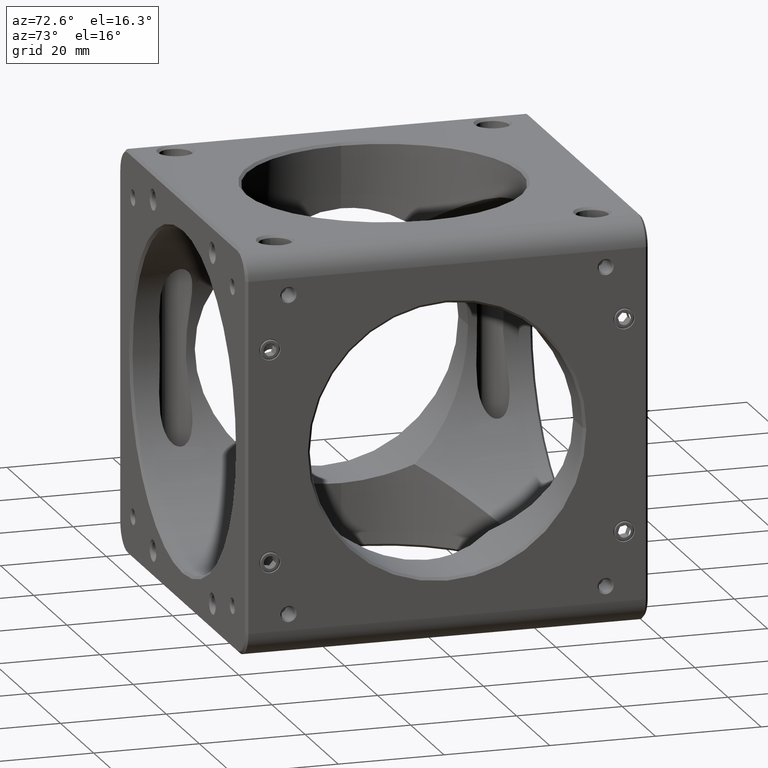
[diagram: clean part render]
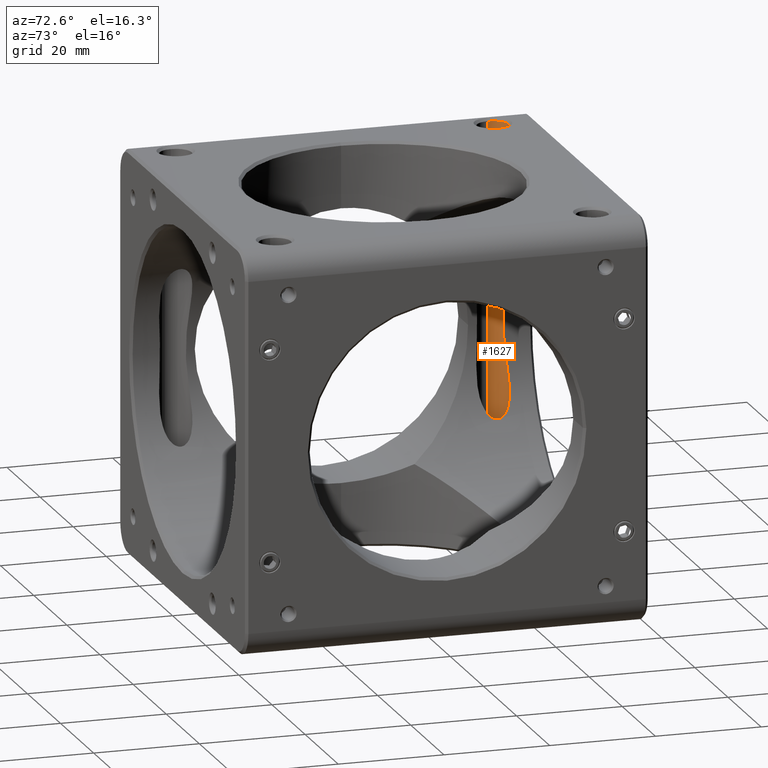
[diagram: same view with one face highlighted and labeled with its STEP entity id]
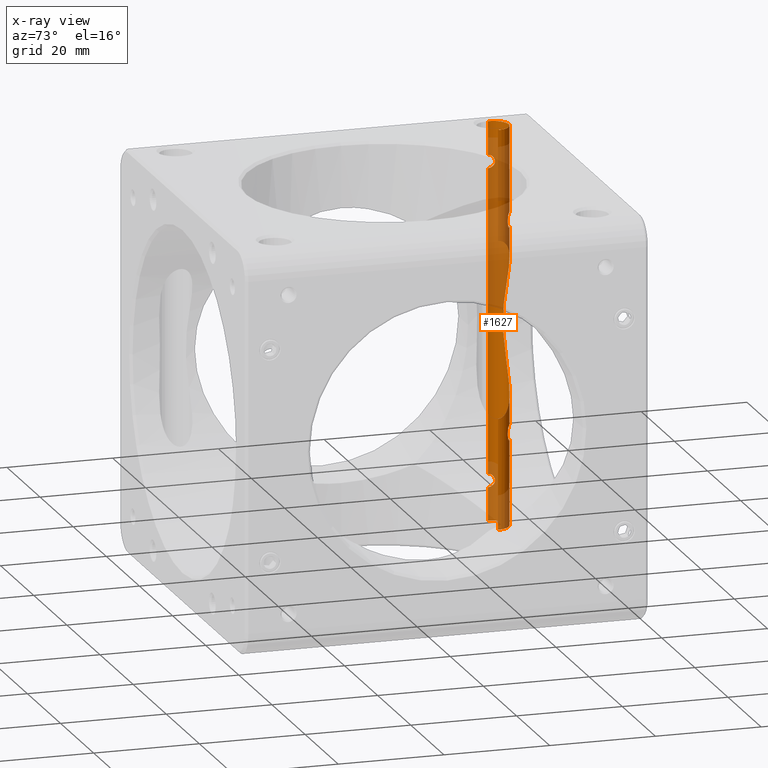
[diagram: x-ray of the same camera — body ghosted, the highlighted face saturated]
A machine part, auxiliary view. The second image highlights one B-rep face of the part: STEP entity #1627.
The next image is the same camera in x-ray: the body ghosted, the highlighted face saturated — about 53% of this face is hidden behind the body in this view.
In plain terms, the highlighted cylindrical surface (edge-blend (fillet) strip) has radius 3 mm, axis along (-0, -0, 1).
Its self-contained STEP definition (entity closure, byte-faithful):
#55 = CARTESIAN_POINT ( 'NONE',  ( -30.08362005272863016, 33.00000000000001421, -28.75000000000000711 ) ) ;
#65 = CARTESIAN_POINT ( 'NONE',  ( -32.83123646504601112, 30.99317586861023699, -30.76329723267446781 ) ) ;
#68 = CARTESIAN_POINT ( 'NONE',  ( -32.93645028066520553, 30.63306343170202339, 28.90975739561481461 ) ) ;
#111 = CARTESIAN_POINT ( 'NONE',  ( -32.73107818922035506, 31.24158351899744801, 29.83344967157232119 ) ) ;
#130 = CARTESIAN_POINT ( 'NONE',  ( -32.93850792701901753, 30.60576740804622631, 37.58800093065710968 ) ) ;
#131 = CARTESIAN_POINT ( 'NONE',  ( -32.74312263298582337, 31.21651225835274346, -29.66953856047498661 ) ) ;
#142 = CARTESIAN_POINT ( 'NONE',  ( -31.24169780690524689, 32.73102573822457373, -30.16567262568044683 ) ) ;
#152 = CARTESIAN_POINT ( 'NONE',  ( -32.84887332932260762, 30.94209105459838582, 29.17442338651204636 ) ) ;
#157 = CARTESIAN_POINT ( 'NONE',  ( -32.88244724530535024, 30.83373984266796342, -37.59234066307465127 ) ) ;
#166 = CARTESIAN_POINT ( 'NONE',  ( -32.98964749367128491, 30.25228143534046765, 37.58325440582734700 ) ) ;
#184 = CARTESIAN_POINT ( 'NONE',  ( -27.93182329876071890, 32.17359429668785964, 19.60841420194881124 ) ) ;
#201 = CARTESIAN_POINT ( 'NONE',  ( -32.74219897542064217, 31.21671407432281953, -37.59890925023186981 ) ) ;
#209 = VECTOR ( 'NONE', #9799, 1000.000000000000000 ) ;
#212 = CARTESIAN_POINT ( 'NONE',  ( -32.87338900802044606, 30.86237607295054275, 37.59292877343733608 ) ) ;
#235 = CARTESIAN_POINT ( 'NONE',  ( -29.66961383292283472, 32.98569163511257329, -31.21665246705001806 ) ) ;
#265 = CARTESIAN_POINT ( 'NONE',  ( -30.63327018553734149, 32.93639037467794140, -28.90992092169683403 ) ) ;
#272 = ORIENTED_EDGE ( 'NONE', *, *, #6432, .F. ) ;
#278 = CARTESIAN_POINT ( 'NONE',  ( -28.75002085670600849, 32.72718758831408081, -30.08271349988444854 ) ) ;
#285 = CARTESIAN_POINT ( 'NONE',  ( -32.99300695093436531, 30.20690935899110130, -37.58291353323392769 ) ) ;
#305 = CARTESIAN_POINT ( 'NONE',  ( -31.20929672240722041, 32.74552662775170120, -30.32689799593806157 ) ) ;
#315 = EDGE_CURVE ( 'NONE', #10967, #3483, #9356, .T. ) ;
#331 = EDGE_CURVE ( 'NONE', #7462, #3823, #2019, .T. ) ;
#419 = CARTESIAN_POINT ( 'NONE',  ( -32.65714285714285836, 31.39269229793758953, -37.60000000000000853 ) ) ;
#431 = CARTESIAN_POINT ( 'NONE',  ( -32.78236584803950393, 31.12231799325444470, -30.55638196424555986 ) ) ;
#434 = CARTESIAN_POINT ( 'NONE',  ( -27.09473745348472562, 30.77176321514282975, 16.55121538067704634 ) ) ;
#449 = CARTESIAN_POINT ( 'NONE',  ( -31.23566109643702404, 32.73606959937883687, -18.53633678742385982 ) ) ;
#479 = CARTESIAN_POINT ( 'NONE',  ( -30.14630420299948099, 33.00531405188772993, 9.994116460379276035 ) ) ;
#488 = VERTEX_POINT ( 'NONE', #6562 ) ;
#495 = CARTESIAN_POINT ( 'NONE',  ( -32.16213420879838480, 32.08324436572599581, -19.12529022669961876 ) ) ;
#499 = CARTESIAN_POINT ( 'NONE',  ( -30.22071571275164104, 33.00105859930138763, 18.42724484125022855 ) ) ;
#520 = CARTESIAN_POINT ( 'NONE',  ( -31.51848055242552249, 32.59055743343103728, -3.905403226412029749 ) ) ;
#536 = CARTESIAN_POINT ( 'NONE',  ( -32.02988055043085325, 32.21057030310407754, -21.03447388123634809 ) ) ;
#578 = CARTESIAN_POINT ( 'NONE',  ( -32.28074659371760902, 31.94984134034056922, -20.57595825909654508 ) ) ;
#581 = CARTESIAN_POINT ( 'NONE',  ( -32.02988055043085325, 32.21057030310407754, 18.96552611876364480 ) ) ;
#600 = CARTESIAN_POINT ( 'NONE',  ( -31.75011836851781410, 32.43661357575290793, -0.7849969435746634305 ) ) ;
#646 = CARTESIAN_POINT ( 'NONE',  ( -28.84592955738684239, 32.77842109690031691, -18.51142539430053091 ) ) ;
#661 = CARTESIAN_POINT ( 'NONE',  ( -31.25005339231949009, 32.72715355633566503, 29.91818594005190235 ) ) ;
#691 = CARTESIAN_POINT ( 'NONE',  ( -28.17740677736049193, 32.38498612594970893, 21.21960419126994069 ) ) ;
#699 = LINE ( 'NONE', #8243, #7611 ) ;
#801 = CIRCLE ( 'NONE', #2521, 3.000000000000002665 ) ;
#847 = CARTESIAN_POINT ( 'NONE',  ( -28.84592955738684239, 32.77842109690031691, 21.48857460569946554 ) ) ;
#856 = CARTESIAN_POINT ( 'NONE',  ( -29.83289457765727448, 33.00000000000000711, 31.24999999999998579 ) ) ;
#863 = VERTEX_POINT ( 'NONE', #5904 ) ;
#867 = VERTEX_POINT ( 'NONE', #5942 ) ;
#884 = CARTESIAN_POINT ( 'NONE',  ( -28.09999999999999432, 32.32163735324877507, -21.15497249869485685 ) ) ;
#887 = CARTESIAN_POINT ( 'NONE',  ( -32.93621366939020589, 30.63442566885938234, -28.91037036598827470 ) ) ;
#898 = CARTESIAN_POINT ( 'NONE',  ( -30.33106559696168958, 32.98555816791957085, 28.78369863548799046 ) ) ;
#935 = CARTESIAN_POINT ( 'NONE',  ( -29.36693656829810095, 32.93645028066524105, 28.90975739561481817 ) ) ;
#936 = B_SPLINE_CURVE_WITH_KNOTS ( 'NONE', 3,
 ( #9029, #10812, #5201, #4412, #6122, #11904, #3437, #499, #7075, #8953, #7192, #9945, #8123, #1606, #10897, #7228, #581, #8162, #4295, #10858, #11787, #10089, #9220, #11015, #5393, #3660, #2666, #11946, #9264, #10210, #8315, #1762, #11127, #12102, #6481, #1681, #2631, #8361, #3624, #2708, #11164, #9185, #847, #1807, #6320, #4608, #691, #7422 ),
 .UNSPECIFIED., .F., .F.,
 ( 4, 2, 2, 2, 2, 2, 2, 2, 2, 2, 2, 2, 2, 2, 2, 2, 2, 2, 2, 2, 2, 2, 2, 4 ),
 ( 0.0000000000000000000, 0.0007014002630802233232, 0.001402800526160446646, 0.002104200789240669861, 0.002805601052320893293, 0.003507001315401116724, 0.003857701446941236897, 0.004208401578481357069, 0.004559101710021477676, 0.004909801841561598282, 0.005260501973101718888, 0.005611202104641838627, 0.005961902236181959233, 0.006312602367722079839, 0.007014002630802314113, 0.007364702762342428648, 0.007715402893882542315, 0.008066103025422665523, 0.008416803156962788732, 0.009118203420043045557, 0.009819603683123302382, 0.01052100394620355921, 0.01087170407774368588, 0.01122240420928381256 ),
 .UNSPECIFIED. ) ;
#941 = CARTESIAN_POINT ( 'NONE',  ( -33.00000000000000000, 29.99999999999998224, -31.25000000000000711 ) ) ;
#1027 = CARTESIAN_POINT ( 'NONE',  ( -32.90206081131795912, 30.76974168013205002, 29.00177810811563361 ) ) ;
#1042 = ORIENTED_EDGE ( 'NONE', *, *, #6178, .F. ) ;
#1043 = CARTESIAN_POINT ( 'NONE',  ( -32.73992846718971350, 31.22182512571995971, 37.59896751386658309 ) ) ;
#1087 = CARTESIAN_POINT ( 'NONE',  ( -32.98001765694118603, 30.34594874664316322, 37.58420675739098016 ) ) ;
#1110 = CARTESIAN_POINT ( 'NONE',  ( -32.74312263298580916, 31.21651225835274346, 30.33046143952500984 ) ) ;
#1121 = CARTESIAN_POINT ( 'NONE',  ( -32.91727739844363754, 30.69969216133492296, -37.58975519196502546 ) ) ;
#1128 = CARTESIAN_POINT ( 'NONE',  ( -32.98197301723426023, 30.32874664588209512, 37.58401496172903933 ) ) ;
#1161 = CARTESIAN_POINT ( 'NONE',  ( -32.79396076728903608, 31.09310981791269413, -37.59718901309840078 ) ) ;
#1179 = CARTESIAN_POINT ( 'NONE',  ( -30.99786008342292831, 32.83170854787983473, -30.76998269508255746 ) ) ;
#1184 = B_SPLINE_CURVE_WITH_KNOTS ( 'NONE', 3,
 ( #8860, #8907, #10893, #3278, #1526, #3322, #11784, #4257, #6159, #11823, #10808, #4212, #5275, #5198, #2392, #11748, #536, #7105, #9899, #578, #6119, #2430, #10765, #2474, #11705, #3232, #9775, #495, #1445, #4170, #4327, #5154, #6075, #449, #8001, #8949, #7032, #1404, #1484, #8040, #8986, #4494, #646, #4453, #5391, #11865, #9148, #8235 ),
 .UNSPECIFIED., .F., .F.,
 ( 4, 2, 2, 2, 2, 2, 2, 2, 2, 2, 2, 2, 2, 2, 2, 2, 2, 2, 2, 2, 2, 2, 2, 4 ),
 ( 0.0000000000000000000, 0.0007014002630802233232, 0.001402800526160446646, 0.002104200789240669861, 0.002805601052320893293, 0.003507001315401116724, 0.003857701446941236897, 0.004208401578481357069, 0.004559101710021477676, 0.004909801841561598282, 0.005260501973101718888, 0.005611202104641838627, 0.005961902236181959233, 0.006312602367722079839, 0.007014002630802314113, 0.007364702762342428648, 0.007715402893882542315, 0.008066103025422665523, 0.008416803156962788732, 0.009118203420043045557, 0.009819603683123302382, 0.01052100394620355921, 0.01087170407774368588, 0.01122240420928381256 ),
 .UNSPECIFIED. ) ;
#1223 = CARTESIAN_POINT ( 'NONE',  ( -31.08999223777437138, 32.79582725171314905, -30.63371032263465565 ) ) ;
#1236 = CARTESIAN_POINT ( 'NONE',  ( -32.90207184137031504, 30.76966679535856386, 30.99822521142986176 ) ) ;
#1244 = CARTESIAN_POINT ( 'NONE',  ( -32.94871256351088107, 30.55318396858663377, -37.58714554497171179 ) ) ;
#1256 = CARTESIAN_POINT ( 'NONE',  ( -26.99999999999999645, 30.00000000000000000, -38.10000000000011511 ) ) ;
#1270 = CARTESIAN_POINT ( 'NONE',  ( -30.16566433255839286, 32.99651283919369149, -28.75830472417160166 ) ) ;
#1283 = CARTESIAN_POINT ( 'NONE',  ( -32.83130304355378115, 30.99906507491512997, 30.76857629725132881 ) ) ;
#1310 = EDGE_LOOP ( 'NONE', ( #8715, #8341, #3061, #5869, #8519, #6655, #8625, #9488, #6203, #7458, #6318, #272 ) ) ;
#1327 = CARTESIAN_POINT ( 'NONE',  ( -33.00000000000001421, 30.16710542234285342, 31.25000000000000000 ) ) ;
#1362 = B_SPLINE_CURVE_WITH_KNOTS ( 'NONE', 3,
 ( #941, #2929, #9485, #7519, #3838, #12162, #65, #6653, #431, #1425, #1468, #6424, #9130, #9245, #131, #4024, #3661, #6443, #887, #8317, #4609, #5630 ),
 .UNSPECIFIED., .F., .F.,
 ( 4, 2, 2, 2, 2, 2, 2, 2, 2, 2, 4 ),
 ( 0.003953707732116446341, 0.004447523194763855318, 0.004941338657411264296, 0.005188246388734970953, 0.005435154120058677610, 0.005682061851382383399, 0.005928969582706090924, 0.006422785045353514646, 0.006916600508000938369, 0.007410415970648362091, 0.007904231433295785814 ),
 .UNSPECIFIED. ) ;
#1365 = EDGE_CURVE ( 'NONE', #8425, #3481, #936, .T. ) ;
#1374 = CARTESIAN_POINT ( 'NONE',  ( -27.99528104713443000, 32.23225647141286032, -20.77850469158084223 ) ) ;
#1388 = CARTESIAN_POINT ( 'NONE',  ( -28.51409838404950037, 32.61274049394101837, 13.96993580573408700 ) ) ;
#1404 = CARTESIAN_POINT ( 'NONE',  ( -30.45785583717324485, 32.97398429294119637, -18.43506327150658208 ) ) ;
#1419 = CARTESIAN_POINT ( 'NONE',  ( -32.65714285714286547, 31.39269229793757887, 37.59999999999998721 ) ) ;
#1425 = CARTESIAN_POINT ( 'NONE',  ( -32.75619909344844416, 31.18512613151228763, -30.40575191993032789 ) ) ;
#1445 = CARTESIAN_POINT ( 'NONE',  ( -32.03945184040475169, 32.20916905892325133, -18.95712608689216339 ) ) ;
#1459 = CARTESIAN_POINT ( 'NONE',  ( -30.00000000000000000, 30.00000000000000000, 37.59999999999998721 ) ) ;
#1468 = CARTESIAN_POINT ( 'NONE',  ( -32.74563853333128094, 31.20904373558929024, -30.32784431057705987 ) ) ;
#1470 = CARTESIAN_POINT ( 'NONE',  ( -27.02479687719874235, 30.39728243043001399, -16.66502933350027860 ) ) ;
#1484 = CARTESIAN_POINT ( 'NONE',  ( -30.22061312267533140, 33.00102944447738906, -18.42725411385820777 ) ) ;
#1509 = VERTEX_POINT ( 'NONE', #7909 ) ;
#1526 = CARTESIAN_POINT ( 'NONE',  ( -29.06127678432481076, 32.85900602462763942, -21.52156653364253103 ) ) ;
#1590 = CARTESIAN_POINT ( 'NONE',  ( -27.58062691127887334, 31.77885085933608522, -15.72896746267886314 ) ) ;
#1603 = EDGE_LOOP ( 'NONE', ( #1042, #6131 ) ) ;
#1606 = CARTESIAN_POINT ( 'NONE',  ( -31.71828173462080969, 32.46160728318564992, 18.71559988468435876 ) ) ;
#1627 = ADVANCED_FACE ( 'NONE', ( #1779, #2661, #7510, #10378, #3222 ), #9862, .F. ) ;
#1656 = CARTESIAN_POINT ( 'NONE',  ( -31.09085417098760828, 32.79546765441260447, 30.63162656169443920 ) ) ;
#1681 = CARTESIAN_POINT ( 'NONE',  ( -30.90935860686807146, 32.86122381596551634, 21.52195377465505999 ) ) ;
#1689 = DIRECTION ( 'NONE',  ( 0.0000000000000000000, 0.0000000000000000000, 1.000000000000000000 ) ) ;
#1712 = VERTEX_POINT ( 'NONE', #11201 ) ;
#1762 = CARTESIAN_POINT ( 'NONE',  ( -31.53629894335297479, 32.57910003437333302, 21.37109196772228614 ) ) ;
#1774 = CARTESIAN_POINT ( 'NONE',  ( -28.90902617315876455, 32.79542482701091899, 30.63157180659253598 ) ) ;
#1779 = FACE_OUTER_BOUND ( 'NONE', #1310, .T. ) ;
#1785 = EDGE_CURVE ( 'NONE', #9328, #488, #4816, .T. ) ;
#1807 = CARTESIAN_POINT ( 'NONE',  ( -28.54230395648025009, 32.62449954072399549, 21.39982376152873655 ) ) ;
#1856 = CARTESIAN_POINT ( 'NONE',  ( -29.66961383292283472, 32.98569163511257329, 28.78334753294998194 ) ) ;
#1887 = VERTEX_POINT ( 'NONE', #6932 ) ;
#1973 = CARTESIAN_POINT ( 'NONE',  ( -27.91512890359862453, 32.15715381679603269, 19.80444692142366492 ) ) ;
#1981 = CARTESIAN_POINT ( 'NONE',  ( -32.83123646504599691, 30.99317586861023699, 29.23670276732553219 ) ) ;
#2000 = CARTESIAN_POINT ( 'NONE',  ( -32.89440565871893796, 30.78994224547194491, 37.59151247675945484 ) ) ;
#2013 = CARTESIAN_POINT ( 'NONE',  ( -31.25005339231949009, 32.72715355633566503, -30.08181405994808699 ) ) ;
#2019 = LINE ( 'NONE', #7966, #12006 ) ;
#2066 = CARTESIAN_POINT ( 'NONE',  ( -32.96457161592295648, 30.46366828152925166, -37.58571615677059441 ) ) ;
#2075 = CARTESIAN_POINT ( 'NONE',  ( -33.00000000000000711, 30.05798177455074338, 37.58218712381317061 ) ) ;
#2125 = CARTESIAN_POINT ( 'NONE',  ( -31.18525530011068980, 32.75614824501823108, -30.40554017854621804 ) ) ;
#2157 = CARTESIAN_POINT ( 'NONE',  ( -32.82167700771039875, 31.01905048746588278, 37.59590905536880712 ) ) ;
#2185 = CARTESIAN_POINT ( 'NONE',  ( -28.74995840626231924, 32.72715896420125858, -29.83552039378937337 ) ) ;
#2191 = CARTESIAN_POINT ( 'NONE',  ( -32.93975519786597772, 30.59980275855088294, -37.58792964002005021 ) ) ;
#2247 = CARTESIAN_POINT ( 'NONE',  ( -27.02467636232404047, 30.39643130820840966, 16.66522473469296273 ) ) ;
#2392 = CARTESIAN_POINT ( 'NONE',  ( -31.80457354537115222, 32.39862692565476010, -21.23175825153139584 ) ) ;
#2425 = EDGE_CURVE ( 'NONE', #10400, #5778, #8246, .T. ) ;
#2430 = CARTESIAN_POINT ( 'NONE',  ( -32.35126649050457104, 31.86347999868782566, -20.24011021924610887 ) ) ;
#2454 = ORIENTED_EDGE ( 'NONE', *, *, #1365, .T. ) ;
#2460 = CARTESIAN_POINT ( 'NONE',  ( -27.83089444402629908, 32.08942268959607702, -15.28461342298682979 ) ) ;
#2474 = CARTESIAN_POINT ( 'NONE',  ( -32.36184961097497848, 31.84977471582561037, -19.88549706287863472 ) ) ;
#2478 = CARTESIAN_POINT ( 'NONE',  ( -29.36557433114073490, 32.93621366939024142, -28.91037036598826404 ) ) ;
#2515 = CARTESIAN_POINT ( 'NONE',  ( -29.05790894540172076, 32.84887332932265025, 29.17442338651206057 ) ) ;
#2519 = ORIENTED_EDGE ( 'NONE', *, *, #10631, .T. ) ;
#2521 = AXIS2_PLACEMENT_3D ( 'NONE', #1459, #1689, #10217 ) ;
#2554 = B_SPLINE_CURVE_WITH_KNOTS ( 'NONE', 3,
 ( #6372, #8247, #3486, #10945, #5325, #3594, #10138, #9122, #1656, #8096, #11877, #661, #7275, #10026, #11838, #4427, #6290, #7237, #12200, #898, #8331, #11093 ),
 .UNSPECIFIED., .F., .F.,
 ( 4, 2, 2, 2, 2, 2, 2, 2, 2, 2, 4 ),
 ( 0.0000000000000000000, 0.0002471067332572709574, 0.0004942134665145419149, 0.0009884269330290964065, 0.001482640399543650898, 0.001976853866058205390, 0.002223960599315482744, 0.002471067332572759664, 0.002965280799087327383, 0.003459494265601895102, 0.003953707732116463688 ),
 .UNSPECIFIED. ) ;
#2631 = CARTESIAN_POINT ( 'NONE',  ( -30.79790187707931537, 32.89428855336279156, 21.53506303306338054 ) ) ;
#2637 = EDGE_CURVE ( 'NONE', #3427, #4377, #699, .T. ) ;
#2661 = FACE_BOUND ( 'NONE', #2741, .T. ) ;
#2666 = CARTESIAN_POINT ( 'NONE',  ( -32.28305262479808846, 31.94713984306439514, 20.56883983834688578 ) ) ;
#2708 = CARTESIAN_POINT ( 'NONE',  ( -29.75222545192861645, 32.99890907662184958, 21.57207160274667856 ) ) ;
#2741 = EDGE_LOOP ( 'NONE', ( #2454, #2519 ) ) ;
#2801 = CARTESIAN_POINT ( 'NONE',  ( -28.91686834372630699, 32.79805719065456060, 29.37083643893202378 ) ) ;
#2929 = CARTESIAN_POINT ( 'NONE',  ( -32.99999999999999289, 30.16460412200393648, -31.24999999999999645 ) ) ;
#2931 = ORIENTED_EDGE ( 'NONE', *, *, #8770, .F. ) ;
#2954 = CARTESIAN_POINT ( 'NONE',  ( -32.91669521231492723, 30.70222259213202065, 37.58979507251953578 ) ) ;
#3024 = CARTESIAN_POINT ( 'NONE',  ( -32.81629340555601004, 31.03378823091382444, -37.59617388995566500 ) ) ;
#3046 = CARTESIAN_POINT ( 'NONE',  ( -30.16473678912786127, 32.99999999999999289, -31.25000000000000000 ) ) ;
#3050 = EDGE_CURVE ( 'NONE', #6127, #1712, #8488, .T. ) ;
#3061 = ORIENTED_EDGE ( 'NONE', *, *, #8844, .T. ) ;
#3064 = CARTESIAN_POINT ( 'NONE',  ( -26.99999999999999645, 30.00000000000000355, -16.70516387228811794 ) ) ;
#3067 = CARTESIAN_POINT ( 'NONE',  ( -32.71029248694841840, 31.28780748666427058, -37.59967967100279651 ) ) ;
#3078 = CARTESIAN_POINT ( 'NONE',  ( -32.80867867200043975, 31.05422642967841540, 37.59652720620905342 ) ) ;
#3101 = CARTESIAN_POINT ( 'NONE',  ( -29.00682413138988736, 32.83123646504604665, -30.76329723267445715 ) ) ;
#3148 = CARTESIAN_POINT ( 'NONE',  ( -28.78348774164738089, 32.74312263298586601, -29.66953856047498661 ) ) ;
#3155 = CARTESIAN_POINT ( 'NONE',  ( -27.93316006028209841, 32.17486941780287424, 20.40257839629355630 ) ) ;
#3156 = CARTESIAN_POINT ( 'NONE',  ( -32.91489293928751891, 30.70954635864744020, -37.58994193524870298 ) ) ;
#3198 = CARTESIAN_POINT ( 'NONE',  ( -28.04304764349339862, 32.27502823179787583, -19.02799038684864641 ) ) ;
#3217 = CARTESIAN_POINT ( 'NONE',  ( -27.27244480164166518, 31.26059690127994273, 16.25702464894908417 ) ) ;
#3222 = FACE_BOUND ( 'NONE', #1603, .T. ) ;
#3232 = CARTESIAN_POINT ( 'NONE',  ( -32.31250909209204991, 31.91136032804629252, -19.53915877119490219 ) ) ;
#3263 = CARTESIAN_POINT ( 'NONE',  ( -28.00081735804877781, 32.23995857971848977, 14.96826495396657819 ) ) ;
#3278 = CARTESIAN_POINT ( 'NONE',  ( -28.84457404814977366, 32.77799298423863661, -21.48846037756501204 ) ) ;
#3296 = CARTESIAN_POINT ( 'NONE',  ( -33.00000000000000000, 29.99999999999999645, 28.74999999999998934 ) ) ;
#3300 = CARTESIAN_POINT ( 'NONE',  ( -28.09999999999999432, 32.32163735324877507, 18.84502750130514315 ) ) ;
#3307 = CARTESIAN_POINT ( 'NONE',  ( -31.51797244563392297, 32.59085950295769862, 3.909490176175326681 ) ) ;
#3322 = CARTESIAN_POINT ( 'NONE',  ( -29.51745239703959101, 32.97022971087790921, -21.56377154134743179 ) ) ;
#3342 = CARTESIAN_POINT ( 'NONE',  ( -33.00000000000000000, 29.99999999999998224, -31.25000000000000711 ) ) ;
#3371 = EDGE_CURVE ( 'NONE', #1509, #867, #12116, .T. ) ;
#3383 = CARTESIAN_POINT ( 'NONE',  ( -26.99999999999999645, 30.00000000000000355, -16.70516387228811794 ) ) ;
#3421 = CARTESIAN_POINT ( 'NONE',  ( -29.01473055442605187, 32.85751646916554591, -12.91533163723893551 ) ) ;
#3427 = VERTEX_POINT ( 'NONE', #8450 ) ;
#3437 = CARTESIAN_POINT ( 'NONE',  ( -29.75138873945748585, 32.99887655354929450, 18.42793874097651496 ) ) ;
#3458 = CARTESIAN_POINT ( 'NONE',  ( -31.17514679233227426, 32.77238417836861828, -6.212075760525977763 ) ) ;
#3481 = VERTEX_POINT ( 'NONE', #11413 ) ;
#3483 = VERTEX_POINT ( 'NONE', #5795 ) ;
#3486 = CARTESIAN_POINT ( 'NONE',  ( -30.16566433255839286, 32.99651283919369149, 31.24169527582839834 ) ) ;
#3594 = CARTESIAN_POINT ( 'NONE',  ( -30.63327018553734149, 32.93639037467794140, 31.09007907830315176 ) ) ;
#3624 = CARTESIAN_POINT ( 'NONE',  ( -30.22061312267533140, 33.00102944447738906, 21.57274588614179578 ) ) ;
#3660 = CARTESIAN_POINT ( 'NONE',  ( -32.31250909209204991, 31.91136032804629252, 20.46084122880509071 ) ) ;
#3661 = CARTESIAN_POINT ( 'NONE',  ( -32.83130304355377405, 30.99906507491511221, -29.23142370274868540 ) ) ;
#3774 = DIRECTION ( 'NONE',  ( -0.0000000000000000000, -0.0000000000000000000, 1.000000000000000000 ) ) ;
#3789 = CARTESIAN_POINT ( 'NONE',  ( -30.00000000000013500, 33.00000000000000000, 31.24999999999999645 ) ) ;
#3817 = DIRECTION ( 'NONE',  ( 1.000000000000000000, 0.0000000000000000000, 0.0000000000000000000 ) ) ;
#3823 = VERTEX_POINT ( 'NONE', #3064 ) ;
#3838 = CARTESIAN_POINT ( 'NONE',  ( -32.90206081131796623, 30.76974168013205002, -30.99822189188436994 ) ) ;
#3882 = CARTESIAN_POINT ( 'NONE',  ( -32.78236584803951104, 31.12231799325445891, 29.44361803575444725 ) ) ;
#3896 = CARTESIAN_POINT ( 'NONE',  ( -33.00000000000000000, 30.00000000000000000, -38.10000000000011511 ) ) ;
#3898 = CARTESIAN_POINT ( 'NONE',  ( -32.92086714815618365, 30.68468999754897908, 37.58945832414960364 ) ) ;
#3903 = EDGE_CURVE ( 'NONE', #10195, #9328, #801, .T. ) ;
#3906 = B_SPLINE_CURVE_WITH_KNOTS ( 'NONE', 3,
 ( #5009, #7858, #7898, #2247, #8802, #434, #9802, #3217, #4194, #5092, #11648, #8845, #6022, #3263, #10750, #7016, #1388, #7943, #8887, #9924, #479, #10003, #5299, #3307, #6145, #11769, #9011, #600, #4280, #10918, #520, #3458, #8028, #8108, #4396, #9888, #3421, #10791, #5180, #10955, #2460, #1590, #10837, #7093, #9967, #6222, #8144, #7985, #1470, #4351, #7174, #3383 ),
 .UNSPECIFIED., .F., .F.,
 ( 4, 2, 2, 2, 2, 2, 2, 2, 2, 2, 2, 2, 2, 2, 2, 2, 2, 2, 2, 2, 2, 2, 2, 2, 2, 4 ),
 ( 0.03806842391811086912, 0.03836316552259499274, 0.03865790712707910942, 0.03924739033604735666, 0.03983687354501561084, 0.04042635675398386502, 0.04101583996295211920, 0.04160532317192038032, 0.04278428958985688868, 0.04514222242572991928, 0.04750015526160294987, 0.05221602093334899719, 0.05457395376922202085, 0.05693188660509504451, 0.05928981944096807510, 0.06164775227684109876, 0.06636361794858715302, 0.06872155078446018361, 0.07107948362033321421, 0.07225845003826972257, 0.07343741645620624481, 0.07402689966517450593, 0.07461638287414276705, 0.07520586608311102816, 0.07550060768759514485, 0.07579534929207927541 ),
 .UNSPECIFIED. ) ;
#3970 = CARTESIAN_POINT ( 'NONE',  ( -32.81161890788282420, 31.04645858858706120, -37.59639497313708745 ) ) ;
#3982 = CARTESIAN_POINT ( 'NONE',  ( -32.68356563081398036, 31.34227980952926984, 37.59999745791303383 ) ) ;
#4024 = CARTESIAN_POINT ( 'NONE',  ( -32.79542482701086215, 31.09097382684134914, -29.36842819340746402 ) ) ;
#4034 = CARTESIAN_POINT ( 'NONE',  ( -30.40670340639506364, 32.97328895826233008, -28.81518219947605175 ) ) ;
#4096 = CARTESIAN_POINT ( 'NONE',  ( -32.98020721343475259, 30.34412916328139076, -37.58418802511497603 ) ) ;
#4159 = DIRECTION ( 'NONE',  ( -0.0000000000000000000, -0.0000000000000000000, -1.000000000000000000 ) ) ;
#4170 = CARTESIAN_POINT ( 'NONE',  ( -31.80661467401726128, 32.39710061421794052, -18.76957504328300530 ) ) ;
#4194 = CARTESIAN_POINT ( 'NONE',  ( -27.34491472107862009, 31.40453060892925308, 16.13508360650656570 ) ) ;
#4212 = CARTESIAN_POINT ( 'NONE',  ( -31.43705355425711900, 32.63586684713285990, -21.40682435123871485 ) ) ;
#4257 = CARTESIAN_POINT ( 'NONE',  ( -30.22071571275164104, 33.00105859930138763, -21.57275515874976790 ) ) ;
#4280 = CARTESIAN_POINT ( 'NONE',  ( -31.72069193952672350, 32.45846702241730952, -1.572088057633690639 ) ) ;
#4294 = EDGE_CURVE ( 'NONE', #1887, #10195, #8152, .T. ) ;
#4295 = CARTESIAN_POINT ( 'NONE',  ( -32.19998863133245237, 32.04052353558186184, 19.22240869594098100 ) ) ;
#4327 = CARTESIAN_POINT ( 'NONE',  ( -31.72009391433115866, 32.46033500900443869, -18.71662685194758069 ) ) ;
#4351 = CARTESIAN_POINT ( 'NONE',  ( -27.00516861253452916, 30.20162319337419987, -16.69681757547991907 ) ) ;
#4377 = VERTEX_POINT ( 'NONE', #3342 ) ;
#4396 = CARTESIAN_POINT ( 'NONE',  ( -29.89075631150750212, 33.01162044437067777, -10.73413081027131000 ) ) ;
#4412 = CARTESIAN_POINT ( 'NONE',  ( -28.84457404814977366, 32.77799298423863661, 18.51153962243497730 ) ) ;
#4418 = CARTESIAN_POINT ( 'NONE',  ( -29.00093492508500859, 32.83130304355381668, 30.76857629725131815 ) ) ;
#4427 = CARTESIAN_POINT ( 'NONE',  ( -31.08999223777437138, 32.79582725171314905, 29.36628967736535856 ) ) ;
#4453 = CARTESIAN_POINT ( 'NONE',  ( -28.54230395648025009, 32.62449954072399549, -18.60017623847127055 ) ) ;
#4494 = CARTESIAN_POINT ( 'NONE',  ( -29.06185349188521627, 32.85918647900464151, -18.47836016408065163 ) ) ;
#4608 = CARTESIAN_POINT ( 'NONE',  ( -28.26178260810668519, 32.44754198555786218, 21.27296363687291247 ) ) ;
#4609 = CARTESIAN_POINT ( 'NONE',  ( -33.00000000000000711, 30.16710542234283565, -28.75000000000001421 ) ) ;
#4656 = CARTESIAN_POINT ( 'NONE',  ( -28.79095626441083411, 32.74563853333133068, 29.67215568942294368 ) ) ;
#4699 = CARTESIAN_POINT ( 'NONE',  ( -28.09999999999999432, 32.32163735324877507, -18.84502750130514315 ) ) ;
#4700 = CARTESIAN_POINT ( 'NONE',  ( -28.74995840626231924, 32.72715896420125858, 30.16447960621061242 ) ) ;
#4816 = B_SPLINE_CURVE_WITH_KNOTS ( 'NONE', 3,
 ( #4844, #3982, #5746, #1043, #11519, #11474, #7623, #5895, #7782, #3078, #8673, #5857, #2157, #8710, #10481, #4885, #11356, #212, #9629, #2000, #8549, #2954, #3898, #5783, #130, #6797, #5821, #6712, #1087, #1128, #7660, #166, #7696, #2075, #8630 ),
 .UNSPECIFIED., .F., .F.,
 ( 4, 2, 2, 1, 1, 2, 2, 1, 1, 2, 2, 1, 1, 2, 2, 1, 2, 2, 2, 1, 1, 4 ),
 ( 0.0000000000000000000, 0.06246768398520623905, 0.07027614448335760267, 0.07808460498150897322, 0.09370152597780818937, 0.1249353679704034437, 0.1327438284685540371, 0.1405522889667046582, 0.1561692099629996000, 0.1874030519555885121, 0.1952115124537349700, 0.2030199729518814000, 0.2186368939481742046, 0.2498707359407544015, 0.2654876569370435702, 0.2811045779333327665, 0.3123384199259063299, 0.3748061039110534565, 0.3904230249073396553, 0.4060399459036258540, 0.4372737878962010272, 0.4997414718813478762 ),
 .UNSPECIFIED. ) ;
#4825 = CARTESIAN_POINT ( 'NONE',  ( -32.75619909344842995, 31.18512613151228408, 29.59424808006965790 ) ) ;
#4834 = CARTESIAN_POINT ( 'NONE',  ( -32.97913666563253798, 30.35324723190647944, -37.58429266503353006 ) ) ;
#4844 = CARTESIAN_POINT ( 'NONE',  ( -32.65714285714286547, 31.39269229793757887, 37.59999999999998721 ) ) ;
#4877 = CARTESIAN_POINT ( 'NONE',  ( -33.00000000000001421, 30.05795001921244491, -37.58218692421674234 ) ) ;
#4885 = CARTESIAN_POINT ( 'NONE',  ( -32.86717356603874407, 30.88283284045210308, 37.59332870385323133 ) ) ;
#4914 = CARTESIAN_POINT ( 'NONE',  ( -32.76488238733503522, 31.16432495158464988, -37.59824930436293755 ) ) ;
#4938 = AXIS2_PLACEMENT_3D ( 'NONE', #5226, #4159, #11777 ) ;
#4987 = CARTESIAN_POINT ( 'NONE',  ( -28.79095626441083411, 32.74563853333133068, -30.32784431057704921 ) ) ;
#5009 = CARTESIAN_POINT ( 'NONE',  ( -26.99999999999999645, 30.00000000000000000, 16.70516387228812150 ) ) ;
#5019 = EDGE_CURVE ( 'NONE', #5778, #10400, #1184, .T. ) ;
#5030 = CARTESIAN_POINT ( 'NONE',  ( -29.00093492508500859, 32.83130304355381668, -29.23142370274867829 ) ) ;
#5066 = CARTESIAN_POINT ( 'NONE',  ( -28.91686834372630699, 32.79805719065456060, -30.62916356106796556 ) ) ;
#5092 = CARTESIAN_POINT ( 'NONE',  ( -27.49709214109854472, 31.66061323601059740, 15.87435692795006936 ) ) ;
#5154 = CARTESIAN_POINT ( 'NONE',  ( -31.53629894335297479, 32.57910003437333302, -18.62890803227771386 ) ) ;
#5179 = CIRCLE ( 'NONE', #4938, 3.000000000000002665 ) ;
#5180 = CARTESIAN_POINT ( 'NONE',  ( -28.34530903300114346, 32.51169793890240811, -14.30887980434249762 ) ) ;
#5198 = CARTESIAN_POINT ( 'NONE',  ( -31.71828173462080969, 32.46160728318564992, -21.28440011531564480 ) ) ;
#5201 = CARTESIAN_POINT ( 'NONE',  ( -28.43700653677863954, 32.57085697474897046, 18.63124083016149868 ) ) ;
#5222 = ORIENTED_EDGE ( 'NONE', *, *, #2425, .T. ) ;
#5226 = CARTESIAN_POINT ( 'NONE',  ( -30.00000000000000000, 30.00000000000000000, -37.60000000000000142 ) ) ;
#5275 = CARTESIAN_POINT ( 'NONE',  ( -31.53415486177681260, 32.58038202525336402, -21.37194966054838474 ) ) ;
#5299 = CARTESIAN_POINT ( 'NONE',  ( -31.17436942140792056, 32.77272964804404864, 6.215946690809878383 ) ) ;
#5325 = CARTESIAN_POINT ( 'NONE',  ( -30.40670340639506364, 32.97328895826233008, 31.18481780052394114 ) ) ;
#5391 = CARTESIAN_POINT ( 'NONE',  ( -28.44383291148777460, 32.56713954922210519, -18.63696086910951522 ) ) ;
#5393 = CARTESIAN_POINT ( 'NONE',  ( -32.35221909630796233, 31.86227332247493749, 20.23238325067543286 ) ) ;
#5470 = LINE ( 'NONE', #8888, #6343 ) ;
#5630 = CARTESIAN_POINT ( 'NONE',  ( -33.00000000000000000, 29.99999999999998224, -28.75000000000000711 ) ) ;
#5746 = CARTESIAN_POINT ( 'NONE',  ( -32.71028078549952056, 31.28783353963791924, 37.59967967209941264 ) ) ;
#5767 = CARTESIAN_POINT ( 'NONE',  ( -32.74563853333126673, 31.20904373558928668, 29.67215568942294013 ) ) ;
#5778 = VERTEX_POINT ( 'NONE', #884 ) ;
#5783 = CARTESIAN_POINT ( 'NONE',  ( -32.92812943331426112, 30.65293438543266902, 37.58886352618216620 ) ) ;
#5795 = CARTESIAN_POINT ( 'NONE',  ( -30.00000000000013500, 33.00000000000000000, -28.75000000000000000 ) ) ;
#5812 = CARTESIAN_POINT ( 'NONE',  ( -32.92718597852116602, 30.65734348082940386, -37.58896586923520999 ) ) ;
#5821 = CARTESIAN_POINT ( 'NONE',  ( -32.96348271868060920, 30.47057609400212641, 37.58579796262111472 ) ) ;
#5829 = CARTESIAN_POINT ( 'NONE',  ( -30.77064034585031393, 32.90177740626120340, -29.00271437649761452 ) ) ;
#5848 = CARTESIAN_POINT ( 'NONE',  ( -32.74781024054647816, 31.20398805700105171, -37.59875968028833881 ) ) ;
#5857 = CARTESIAN_POINT ( 'NONE',  ( -32.81473922439943181, 31.03792381756998608, 37.59624277003319293 ) ) ;
#5869 = ORIENTED_EDGE ( 'NONE', *, *, #331, .T. ) ;
#5895 = CARTESIAN_POINT ( 'NONE',  ( -32.77633282791612856, 31.13733897237716519, 37.59788514241596147 ) ) ;
#5904 = CARTESIAN_POINT ( 'NONE',  ( -33.00000000000000000, 29.99999999999998224, -28.75000000000000711 ) ) ;
#5906 = CARTESIAN_POINT ( 'NONE',  ( -30.00000000000013500, 33.00000000000000000, -31.25000000000000000 ) ) ;
#5917 = CARTESIAN_POINT ( 'NONE',  ( -28.75841648100267278, 32.73107818922041190, -30.16655032842768236 ) ) ;
#5918 = CARTESIAN_POINT ( 'NONE',  ( -32.98583596909878679, 30.32959096962389367, 31.21702853761390983 ) ) ;
#5942 = CARTESIAN_POINT ( 'NONE',  ( -30.00000000000013500, 33.00000000000000000, 31.24999999999999645 ) ) ;
#5983 = DIRECTION ( 'NONE',  ( -0.0000000000000000000, -0.0000000000000000000, 1.000000000000000000 ) ) ;
#6022 = CARTESIAN_POINT ( 'NONE',  ( -27.82976340998667908, 32.07466113331814483, 15.28394572730212886 ) ) ;
#6075 = CARTESIAN_POINT ( 'NONE',  ( -31.43927085602059179, 32.63466024392192111, -18.59391082665690931 ) ) ;
#6119 = CARTESIAN_POINT ( 'NONE',  ( -32.31122531142104748, 31.91291645785328868, -20.46585025740919050 ) ) ;
#6122 = CARTESIAN_POINT ( 'NONE',  ( -29.06127678432481076, 32.85900602462763942, 18.47843346635746897 ) ) ;
#6127 = VERTEX_POINT ( 'NONE', #3296 ) ;
#6131 = ORIENTED_EDGE ( 'NONE', *, *, #3371, .F. ) ;
#6139 = CARTESIAN_POINT ( 'NONE',  ( -28.04234582665743147, 32.27445387336653937, 19.03024501582815731 ) ) ;
#6145 = CARTESIAN_POINT ( 'NONE',  ( -31.60439117293134359, 32.53589823466074904, 3.136039591281366334 ) ) ;
#6159 = CARTESIAN_POINT ( 'NONE',  ( -30.45683503995791597, 32.97409277680539930, -21.56496276694060654 ) ) ;
#6173 = CARTESIAN_POINT ( 'NONE',  ( -26.99999999999999645, 30.00000000000000000, 37.59999999999998721 ) ) ;
#6178 = EDGE_CURVE ( 'NONE', #867, #1509, #2554, .T. ) ;
#6203 = ORIENTED_EDGE ( 'NONE', *, *, #7013, .F. ) ;
#6204 = CARTESIAN_POINT ( 'NONE',  ( -30.00000000000013500, 33.00000000000000000, -28.75000000000000000 ) ) ;
#6222 = CARTESIAN_POINT ( 'NONE',  ( -27.14829282210502015, 30.94678823936253309, -16.46351450273450823 ) ) ;
#6290 = CARTESIAN_POINT ( 'NONE',  ( -30.99786008342292831, 32.83170854787983473, 29.23001730491744610 ) ) ;
#6318 = ORIENTED_EDGE ( 'NONE', *, *, #7665, .F. ) ;
#6320 = CARTESIAN_POINT ( 'NONE',  ( -28.44383291148777460, 32.56713954922210519, 21.36303913089048478 ) ) ;
#6343 = VECTOR ( 'NONE', #5983, 1000.000000000000000 ) ;
#6372 = CARTESIAN_POINT ( 'NONE',  ( -30.00000000000013500, 33.00000000000000000, 31.24999999999999645 ) ) ;
#6405 = B_SPLINE_CURVE_WITH_KNOTS ( 'NONE', 3,
 ( #7548, #55, #1270, #11450, #4034, #265, #5829, #7789, #9678, #9639, #6858, #2013, #142, #305, #2125, #1223, #1179, #10623, #6809, #10585, #3046, #5906 ),
 .UNSPECIFIED., .F., .F.,
 ( 4, 2, 2, 2, 2, 2, 2, 2, 2, 2, 4 ),
 ( 0.0000000000000000000, 0.0002471067332572709574, 0.0004942134665145419149, 0.0009884269330290964065, 0.001482640399543650898, 0.001976853866058205390, 0.002223960599315482744, 0.002471067332572759664, 0.002965280799087327383, 0.003459494265601895102, 0.003953707732116463688 ),
 .UNSPECIFIED. ) ;
#6424 = CARTESIAN_POINT ( 'NONE',  ( -32.73107818922034795, 31.24158351899742669, -30.16655032842767881 ) ) ;
#6432 = EDGE_CURVE ( 'NONE', #4377, #863, #1362, .T. ) ;
#6443 = CARTESIAN_POINT ( 'NONE',  ( -32.90207184137032215, 30.76966679535855320, -29.00177478857015245 ) ) ;
#6481 = CARTESIAN_POINT ( 'NONE',  ( -31.12820929950846605, 32.78220750078710211, 21.48632171266861235 ) ) ;
#6494 = CARTESIAN_POINT ( 'NONE',  ( -30.00000000000013500, 33.00000000000000000, 28.74999999999999289 ) ) ;
#6562 = CARTESIAN_POINT ( 'NONE',  ( -33.00000000005673684, 30.00000000000000000, 37.58218696704305728 ) ) ;
#6576 = CARTESIAN_POINT ( 'NONE',  ( -33.00000000000000000, 29.99999999999999645, 28.74999999999998934 ) ) ;
#6653 = CARTESIAN_POINT ( 'NONE',  ( -32.79805719065450376, 31.08313165627379604, -30.62916356106797977 ) ) ;
#6655 = ORIENTED_EDGE ( 'NONE', *, *, #4294, .T. ) ;
#6712 = CARTESIAN_POINT ( 'NONE',  ( -32.97185159223351292, 30.41360663619327198, 37.58500305236746186 ) ) ;
#6736 = CARTESIAN_POINT ( 'NONE',  ( -32.72715896420118753, 31.25004159373779444, 30.16447960621060886 ) ) ;
#6746 = CARTESIAN_POINT ( 'NONE',  ( -32.85562064458872555, 30.91996564936077618, -37.59406893285459006 ) ) ;
#6797 = CARTESIAN_POINT ( 'NONE',  ( -32.94741863325979381, 30.56003689285109814, 37.58722713941033788 ) ) ;
#6809 = CARTESIAN_POINT ( 'NONE',  ( -30.63150445714788006, 32.93672677042403052, -31.09096084228893631 ) ) ;
#6824 = CARTESIAN_POINT ( 'NONE',  ( -29.36693656829810095, 32.93645028066524105, -31.09024260438517118 ) ) ;
#6858 = CARTESIAN_POINT ( 'NONE',  ( -31.24989242467448847, 32.72722733571596621, -29.83393668990710879 ) ) ;
#6881 = CARTESIAN_POINT ( 'NONE',  ( -32.97241302637935689, 30.40896097615302196, -37.58494830049739477 ) ) ;
#6915 = CARTESIAN_POINT ( 'NONE',  ( -28.81487386848783672, 32.75619909344849390, -30.40575191993033499 ) ) ;
#6932 = CARTESIAN_POINT ( 'NONE',  ( -26.99999999999999645, 30.00000000000000000, 16.70516387228812150 ) ) ;
#6955 = CARTESIAN_POINT ( 'NONE',  ( -33.00000000000000000, 29.99999999999999289, 31.24999999999999289 ) ) ;
#6994 = CARTESIAN_POINT ( 'NONE',  ( -27.93182329876071890, 32.17359429668785964, -20.39158579805118876 ) ) ;
#7013 = EDGE_CURVE ( 'NONE', #1712, #488, #5470, .T. ) ;
#7016 = CARTESIAN_POINT ( 'NONE',  ( -28.34335145318775773, 32.51039949581324606, 14.31274520901129854 ) ) ;
#7032 = CARTESIAN_POINT ( 'NONE',  ( -30.79790187707931537, 32.89428855336279156, -18.46493696693662656 ) ) ;
#7042 = CARTESIAN_POINT ( 'NONE',  ( -28.09999999999999432, 32.32163735324877507, -18.84502750130514315 ) ) ;
#7075 = CARTESIAN_POINT ( 'NONE',  ( -30.45683503995791597, 32.97409277680539930, 18.43503723305939346 ) ) ;
#7087 = CARTESIAN_POINT ( 'NONE',  ( -27.99528104713443000, 32.23225647141286032, 19.22149530841916842 ) ) ;
#7093 = CARTESIAN_POINT ( 'NONE',  ( -27.34542044863230714, 31.40558008860777761, -16.13423669346322953 ) ) ;
#7105 = CARTESIAN_POINT ( 'NONE',  ( -32.15022995166828679, 32.09369225745614784, -20.86894400709049080 ) ) ;
#7174 = CARTESIAN_POINT ( 'NONE',  ( -26.99999999999999645, 30.09976613014236335, -16.70516387228810373 ) ) ;
#7192 = CARTESIAN_POINT ( 'NONE',  ( -31.13173072164100219, 32.78762504439935555, 18.50716867425608214 ) ) ;
#7228 = CARTESIAN_POINT ( 'NONE',  ( -31.95951564931739952, 32.27380633062924886, 18.89243504736586132 ) ) ;
#7237 = CARTESIAN_POINT ( 'NONE',  ( -30.76931930987672814, 32.90214504214989688, 29.00162837767386037 ) ) ;
#7275 = CARTESIAN_POINT ( 'NONE',  ( -31.24169780690524689, 32.73102573822457373, 29.83432737431954607 ) ) ;
#7413 = CARTESIAN_POINT ( 'NONE',  ( -30.00000000000000000, 30.00000000000000000, -38.10000000000011511 ) ) ;
#7422 = CARTESIAN_POINT ( 'NONE',  ( -28.09999999999999432, 32.32163735324877507, 21.15497249869485685 ) ) ;
#7431 = EDGE_CURVE ( 'NONE', #3427, #11277, #7869, .T. ) ;
#7458 = ORIENTED_EDGE ( 'NONE', *, *, #3050, .F. ) ;
#7462 = VERTEX_POINT ( 'NONE', #8833 ) ;
#7510 = FACE_BOUND ( 'NONE', #9993, .T. ) ;
#7519 = CARTESIAN_POINT ( 'NONE',  ( -32.93645028066521974, 30.63306343170201274, -31.09024260438518183 ) ) ;
#7548 = CARTESIAN_POINT ( 'NONE',  ( -30.00000000000013500, 33.00000000000000000, -28.75000000000000000 ) ) ;
#7611 = VECTOR ( 'NONE', #11254, 1000.000000000000000 ) ;
#7623 = CARTESIAN_POINT ( 'NONE',  ( -32.75626172613888087, 31.18464154836940594, 37.59852355764721210 ) ) ;
#7660 = CARTESIAN_POINT ( 'NONE',  ( -32.98519266706391306, 30.29809759006030490, 37.58369712096442328 ) ) ;
#7665 = EDGE_CURVE ( 'NONE', #863, #6127, #8095, .T. ) ;
#7681 = CARTESIAN_POINT ( 'NONE',  ( -32.79542482701085504, 31.09097382684135624, 30.63157180659255019 ) ) ;
#7687 = CARTESIAN_POINT ( 'NONE',  ( -32.84155707412795522, 30.96288101139246507, -37.59489681272538064 ) ) ;
#7696 = CARTESIAN_POINT ( 'NONE',  ( -32.99747859060261845, 30.14652298674345943, 37.58245972590985673 ) ) ;
#7761 = CARTESIAN_POINT ( 'NONE',  ( -29.23025831986807432, 32.90206081131798754, -30.99822189188435928 ) ) ;
#7771 = CARTESIAN_POINT ( 'NONE',  ( -32.98965112520701837, 30.25224021355701964, -37.58325414855882229 ) ) ;
#7782 = CARTESIAN_POINT ( 'NONE',  ( -32.79394946766353769, 31.09313966786744743, 37.59718944515370964 ) ) ;
#7789 = CARTESIAN_POINT ( 'NONE',  ( -30.99836308026023701, 32.83151369732048863, -29.23075600914262040 ) ) ;
#7802 = CARTESIAN_POINT ( 'NONE',  ( -32.93621366939019879, 30.63442566885938945, 31.08962963401172885 ) ) ;
#7858 = CARTESIAN_POINT ( 'NONE',  ( -27.00000000000000355, 30.09941836575418606, 16.70516387228812505 ) ) ;
#7869 = B_SPLINE_CURVE_WITH_KNOTS ( 'NONE', 3,
 ( #11553, #4877, #10563, #285, #7771, #11428, #9617, #4096, #4834, #6881, #2066, #1244, #2191, #5812, #8747, #1121, #3156, #11389, #157, #6746, #7687, #8622, #3024, #3970, #1161, #10521, #4914, #11468, #5848, #201, #8665, #3067, #10736, #419 ),
 .UNSPECIFIED., .F., .F.,
 ( 4, 2, 1, 1, 2, 2, 2, 1, 1, 2, 2, 2, 1, 2, 2, 2, 1, 2, 2, 4 ),
 ( 0.5002586700285285293, 0.5627263362749558295, 0.5939601693981695352, 0.6095770859597765545, 0.6173855442405822291, 0.6251940025213879037, 0.6876616687678396289, 0.7188955018910643258, 0.7345124184526767852, 0.7423208767334829039, 0.7501293350142891336, 0.8125970012607240944, 0.8438308343839409087, 0.8594477509455477060, 0.8750646675071545033, 0.9062985006303678759, 0.9219154171919742291, 0.9297238754727774612, 0.9375323337535805823, 1.000000000000000000 ),
 .UNSPECIFIED. ) ;
#7898 = CARTESIAN_POINT ( 'NONE',  ( -27.00507587424056766, 30.20034473286121468, 16.69696753822943691 ) ) ;
#7909 = CARTESIAN_POINT ( 'NONE',  ( -30.00000000000013500, 33.00000000000000000, 28.74999999999999289 ) ) ;
#7925 = CARTESIAN_POINT ( 'NONE',  ( -28.04234582665743147, 32.27445387336653937, -20.96975498417184625 ) ) ;
#7943 = CARTESIAN_POINT ( 'NONE',  ( -29.01319502819294982, 32.85718076982722380, 12.91892667919363014 ) ) ;
#7966 = CARTESIAN_POINT ( 'NONE',  ( -26.99999999999999645, 30.00000000000000000, -38.10000000000011511 ) ) ;
#7971 = CARTESIAN_POINT ( 'NONE',  ( -27.91553039345827258, 32.15754178113227368, -19.79732510681772339 ) ) ;
#7985 = CARTESIAN_POINT ( 'NONE',  ( -27.03923383781431866, 30.49292661526270010, -16.64162270023112811 ) ) ;
#8001 = CARTESIAN_POINT ( 'NONE',  ( -31.12820929950846605, 32.78220750078710211, -18.51367828733139476 ) ) ;
#8028 = CARTESIAN_POINT ( 'NONE',  ( -30.83475603664651388, 32.91807133724623213, -7.729634104652455484 ) ) ;
#8040 = CARTESIAN_POINT ( 'NONE',  ( -29.75222545192861645, 32.99890907662184958, -18.42792839725333209 ) ) ;
#8095 = LINE ( 'NONE', #3896, #10294 ) ;
#8096 = CARTESIAN_POINT ( 'NONE',  ( -31.21610367197959590, 32.74329985386684427, 30.33167272241891510 ) ) ;
#8108 = CARTESIAN_POINT ( 'NONE',  ( -30.14967750175493322, 33.00509336593098197, -9.983795738495533811 ) ) ;
#8123 = CARTESIAN_POINT ( 'NONE',  ( -31.53415486177681260, 32.58038202525336402, 18.62805033945161526 ) ) ;
#8128 = CARTESIAN_POINT ( 'NONE',  ( -29.83539587799617721, 33.00000000000000000, 28.74999999999998934 ) ) ;
#8144 = CARTESIAN_POINT ( 'NONE',  ( -27.09522643816705312, 30.77378434669313023, -16.55041675595588302 ) ) ;
#8152 = LINE ( 'NONE', #1256, #209 ) ;
#8162 = CARTESIAN_POINT ( 'NONE',  ( -32.15022995166828679, 32.09369225745614784, 19.13105599290951275 ) ) ;
#8235 = CARTESIAN_POINT ( 'NONE',  ( -28.09999999999999432, 32.32163735324877507, -18.84502750130514315 ) ) ;
#8243 = CARTESIAN_POINT ( 'NONE',  ( -33.00000000000000000, 30.00000000000000000, -38.10000000000011511 ) ) ;
#8246 = B_SPLINE_CURVE_WITH_KNOTS ( 'NONE', 3,
 ( #7042, #3198, #10776, #11632, #7971, #11671, #6994, #1374, #7925, #11714 ),
 .UNSPECIFIED., .F., .F.,
 ( 4, 2, 2, 2, 4 ),
 ( 0.0003122551202896977967, 0.0009006119669252013113, 0.001488968813560704717, 0.002077325660196208557, 0.002665682506831711963 ),
 .UNSPECIFIED. ) ;
#8247 = CARTESIAN_POINT ( 'NONE',  ( -30.08362005272863016, 33.00000000000001421, 31.24999999999999645 ) ) ;
#8315 = CARTESIAN_POINT ( 'NONE',  ( -31.72009391433115866, 32.46033500900443869, 21.28337314805241576 ) ) ;
#8317 = CARTESIAN_POINT ( 'NONE',  ( -32.98583596909877258, 30.32959096962387591, -28.78297146238610082 ) ) ;
#8328 = CARTESIAN_POINT ( 'NONE',  ( -28.81487386848783672, 32.75619909344849390, 29.59424808006967211 ) ) ;
#8331 = CARTESIAN_POINT ( 'NONE',  ( -30.16473678912786127, 32.99999999999999289, 28.74999999999999645 ) ) ;
#8341 = ORIENTED_EDGE ( 'NONE', *, *, #7431, .T. ) ;
#8361 = CARTESIAN_POINT ( 'NONE',  ( -30.45785583717324485, 32.97398429294119637, 21.56493672849342147 ) ) ;
#8368 = CARTESIAN_POINT ( 'NONE',  ( -28.75841648100267278, 32.73107818922041190, 29.83344967157231764 ) ) ;
#8407 = CARTESIAN_POINT ( 'NONE',  ( -28.78348774164738089, 32.74312263298586601, 30.33046143952500984 ) ) ;
#8425 = VERTEX_POINT ( 'NONE', #10681 ) ;
#8450 = CARTESIAN_POINT ( 'NONE',  ( -33.00000000005673684, 29.99999999999999289, -37.58218696581147356 ) ) ;
#8488 = B_SPLINE_CURVE_WITH_KNOTS ( 'NONE', 3,
 ( #6576, #11342, #8573, #68, #1027, #152, #1981, #9489, #3882, #4825, #5767, #111, #9530, #6736, #1110, #7681, #1283, #1236, #7802, #5918, #1327, #6955 ),
 .UNSPECIFIED., .F., .F.,
 ( 4, 2, 2, 2, 2, 2, 2, 2, 2, 2, 4 ),
 ( 0.003953707732116451545, 0.004447523194763871798, 0.004941338657411292919, 0.005188246388735002178, 0.005435154120058710570, 0.005682061851382419829, 0.005928969582706129088, 0.006422785045353547606, 0.006916600508000965257, 0.007410415970648382908, 0.007904231433295801426 ),
 .UNSPECIFIED. ) ;
#8519 = ORIENTED_EDGE ( 'NONE', *, *, #9458, .F. ) ;
#8549 = CARTESIAN_POINT ( 'NONE',  ( -32.90588186898909839, 30.74616398013189666, 37.59065578005818509 ) ) ;
#8573 = CARTESIAN_POINT ( 'NONE',  ( -32.98569163511255198, 30.33038616707730029, 28.78334753294998194 ) ) ;
#8622 = CARTESIAN_POINT ( 'NONE',  ( -32.82652707602760245, 31.00547070620536516, -37.59567031006739768 ) ) ;
#8625 = ORIENTED_EDGE ( 'NONE', *, *, #3903, .T. ) ;
#8628 = DIRECTION ( 'NONE',  ( -0.0000000000000000000, -0.0000000000000000000, 1.000000000000000000 ) ) ;
#8630 = CARTESIAN_POINT ( 'NONE',  ( -33.00000000005673684, 30.00000000000000000, 37.58218696704305728 ) ) ;
#8665 = CARTESIAN_POINT ( 'NONE',  ( -32.73992699969716114, 31.22182839305403590, -37.59896751460813391 ) ) ;
#8673 = CARTESIAN_POINT ( 'NONE',  ( -32.81018816969576335, 31.05018341414904270, 37.59645698842567896 ) ) ;
#8710 = CARTESIAN_POINT ( 'NONE',  ( -32.83857742601436058, 30.97160439360338202, 37.59504367828920834 ) ) ;
#8715 = ORIENTED_EDGE ( 'NONE', *, *, #2637, .F. ) ;
#8747 = CARTESIAN_POINT ( 'NONE',  ( -32.92130868503722496, 30.68266544282674957, -37.58943599282571313 ) ) ;
#8770 = EDGE_CURVE ( 'NONE', #3483, #10967, #6405, .T. ) ;
#8802 = CARTESIAN_POINT ( 'NONE',  ( -27.03908700674520205, 30.49197202916718652, 16.64186080053461225 ) ) ;
#8833 = CARTESIAN_POINT ( 'NONE',  ( -26.99999999999999645, 30.00000000000000000, -37.60000000000000142 ) ) ;
#8844 = EDGE_CURVE ( 'NONE', #11277, #7462, #5179, .T. ) ;
#8845 = CARTESIAN_POINT ( 'NONE',  ( -27.74393515709341429, 31.98187364352979145, 15.43908263491431043 ) ) ;
#8860 = CARTESIAN_POINT ( 'NONE',  ( -28.09999999999999432, 32.32163735324877507, -21.15497249869485685 ) ) ;
#8865 = CARTESIAN_POINT ( 'NONE',  ( -29.83289457765727448, 33.00000000000000711, -28.74999999999999289 ) ) ;
#8887 = CARTESIAN_POINT ( 'NONE',  ( -29.32211045635537161, 32.93632415748796660, 12.20205266759619356 ) ) ;
#8888 = CARTESIAN_POINT ( 'NONE',  ( -33.00000000000000000, 30.00000000000000000, -38.10000000000011511 ) ) ;
#8907 = CARTESIAN_POINT ( 'NONE',  ( -28.25461605362868767, 32.44817326613948438, -21.28407097800192105 ) ) ;
#8933 = CARTESIAN_POINT ( 'NONE',  ( -28.04304764349339862, 32.27502823179787583, 20.97200961315136070 ) ) ;
#8949 = CARTESIAN_POINT ( 'NONE',  ( -30.90935860686807146, 32.86122381596551634, -18.47804622534493646 ) ) ;
#8953 = CARTESIAN_POINT ( 'NONE',  ( -30.90907985641124966, 32.86836188676511483, 18.47464097235184610 ) ) ;
#8986 = CARTESIAN_POINT ( 'NONE',  ( -29.51783829305129814, 32.97028387208414557, -18.43621274376180708 ) ) ;
#9011 = CARTESIAN_POINT ( 'NONE',  ( -31.74988091394637735, 32.43678411197482347, 0.7945429922517251997 ) ) ;
#9029 = CARTESIAN_POINT ( 'NONE',  ( -28.09999999999999432, 32.32163735324877507, 18.84502750130514315 ) ) ;
#9074 = CARTESIAN_POINT ( 'NONE',  ( -28.87768200674567609, 32.78236584803956788, 29.44361803575444014 ) ) ;
#9122 = CARTESIAN_POINT ( 'NONE',  ( -30.99836308026023701, 32.83151369732048863, 30.76924399085735828 ) ) ;
#9130 = CARTESIAN_POINT ( 'NONE',  ( -32.72718758831403818, 31.24997914329410520, -30.08271349988445920 ) ) ;
#9148 = CARTESIAN_POINT ( 'NONE',  ( -28.17740677736049193, 32.38498612594970893, -18.78039580873005931 ) ) ;
#9185 = CARTESIAN_POINT ( 'NONE',  ( -29.06185349188521627, 32.85918647900464151, 21.52163983591934482 ) ) ;
#9191 = CARTESIAN_POINT ( 'NONE',  ( -27.91553039345827258, 32.15754178113227368, 20.20267489318228371 ) ) ;
#9220 = CARTESIAN_POINT ( 'NONE',  ( -32.36149179411330579, 31.85023149646358576, 19.87909385508952553 ) ) ;
#9245 = CARTESIAN_POINT ( 'NONE',  ( -32.72715896420120174, 31.25004159373779444, -29.83552039378938048 ) ) ;
#9264 = CARTESIAN_POINT ( 'NONE',  ( -32.03945184040475169, 32.20916905892325133, 21.04287391310783306 ) ) ;
#9328 = VERTEX_POINT ( 'NONE', #1419 ) ;
#9356 = B_SPLINE_CURVE_WITH_KNOTS ( 'NONE', 3,
 ( #9608, #11501, #235, #6824, #7761, #11544, #3101, #5066, #9652, #6915, #4987, #5917, #278, #2185, #3148, #10637, #5030, #10814, #2478, #11828, #8865, #6204 ),
 .UNSPECIFIED., .F., .F.,
 ( 4, 2, 2, 2, 2, 2, 2, 2, 2, 2, 4 ),
 ( 0.003953707732116463688, 0.004447523194763873533, 0.004941338657411283378, 0.005188246388734991769, 0.005435154120058700161, 0.005682061851382408553, 0.005928969582706116945, 0.006422785045353533728, 0.006916600508000950512, 0.007410415970648367295, 0.007904231433295784079 ),
 .UNSPECIFIED. ) ;
#9375 = CARTESIAN_POINT ( 'NONE',  ( -30.00000000000013500, 33.00000000000000000, -31.25000000000000000 ) ) ;
#9396 = CARTESIAN_POINT ( 'NONE',  ( -29.23025831986807432, 32.90206081131798754, 29.00177810811563717 ) ) ;
#9458 = EDGE_CURVE ( 'NONE', #1887, #3823, #3906, .T. ) ;
#9485 = CARTESIAN_POINT ( 'NONE',  ( -32.98569163511256619, 30.33038616707728607, -31.21665246705002872 ) ) ;
#9488 = ORIENTED_EDGE ( 'NONE', *, *, #1785, .T. ) ;
#9489 = CARTESIAN_POINT ( 'NONE',  ( -32.79805719065449665, 31.08313165627381380, 29.37083643893202023 ) ) ;
#9530 = CARTESIAN_POINT ( 'NONE',  ( -32.72718758831403107, 31.24997914329411941, 29.91728650011555146 ) ) ;
#9608 = CARTESIAN_POINT ( 'NONE',  ( -30.00000000000013500, 33.00000000000000000, -31.25000000000000000 ) ) ;
#9617 = CARTESIAN_POINT ( 'NONE',  ( -32.98194335279534073, 30.32874573267047680, -37.58401771231238087 ) ) ;
#9629 = CARTESIAN_POINT ( 'NONE',  ( -32.87986587688948958, 30.84069656779782775, 37.59250493727879672 ) ) ;
#9639 = CARTESIAN_POINT ( 'NONE',  ( -31.21610367197959590, 32.74329985386684427, -29.66832727758108490 ) ) ;
#9652 = CARTESIAN_POINT ( 'NONE',  ( -28.87768200674567609, 32.78236584803956788, -30.55638196424555630 ) ) ;
#9678 = CARTESIAN_POINT ( 'NONE',  ( -31.09085417098760828, 32.79546765441260447, -29.36837343830555724 ) ) ;
#9703 = ORIENTED_EDGE ( 'NONE', *, *, #5019, .T. ) ;
#9746 = AXIS2_PLACEMENT_3D ( 'NONE', #7413, #3774, #3817 ) ;
#9775 = CARTESIAN_POINT ( 'NONE',  ( -32.28305262479808846, 31.94713984306439514, -19.43116016165310711 ) ) ;
#9799 = DIRECTION ( 'NONE',  ( -0.0000000000000000000, -0.0000000000000000000, 1.000000000000000000 ) ) ;
#9802 = CARTESIAN_POINT ( 'NONE',  ( -27.14793604672116345, 30.94572359281961482, 16.46410229251102919 ) ) ;
#9862 = CYLINDRICAL_SURFACE ( 'NONE', #9746, 3.000000000000002665 ) ;
#9888 = CARTESIAN_POINT ( 'NONE',  ( -29.32369418990714038, 32.93673327622062885, -12.19835383085546709 ) ) ;
#9899 = CARTESIAN_POINT ( 'NONE',  ( -32.19998863133245237, 32.04052353558186184, -20.77759130405901544 ) ) ;
#9924 = CARTESIAN_POINT ( 'NONE',  ( -29.88822533414111149, 33.01148471942033780, 10.74105382600338565 ) ) ;
#9945 = CARTESIAN_POINT ( 'NONE',  ( -31.43705355425711900, 32.63586684713285990, 18.59317564876128515 ) ) ;
#9960 = ORIENTED_EDGE ( 'NONE', *, *, #315, .F. ) ;
#9967 = CARTESIAN_POINT ( 'NONE',  ( -27.27286929335759780, 31.26150699860961879, -16.25631303352455959 ) ) ;
#9993 = EDGE_LOOP ( 'NONE', ( #9703, #5222 ) ) ;
#10003 = CARTESIAN_POINT ( 'NONE',  ( -30.83357682477676676, 32.91863316611593149, 7.735058104773564480 ) ) ;
#10020 = CARTESIAN_POINT ( 'NONE',  ( -28.75002085670600849, 32.72718758831408081, 29.91728650011554436 ) ) ;
#10026 = CARTESIAN_POINT ( 'NONE',  ( -31.20929672240722041, 32.74552662775170120, 29.67310200406194909 ) ) ;
#10089 = CARTESIAN_POINT ( 'NONE',  ( -32.35126649050457104, 31.86347999868782566, 19.75988978075388758 ) ) ;
#10138 = CARTESIAN_POINT ( 'NONE',  ( -30.77064034585031393, 32.90177740626120340, 30.99728562350238192 ) ) ;
#10195 = VERTEX_POINT ( 'NONE', #6173 ) ;
#10210 = CARTESIAN_POINT ( 'NONE',  ( -31.80661467401726128, 32.39710061421794052, 21.23042495671700181 ) ) ;
#10217 = DIRECTION ( 'NONE',  ( 1.000000000000000000, 0.0000000000000000000, 0.0000000000000000000 ) ) ;
#10254 = B_SPLINE_CURVE_WITH_KNOTS ( 'NONE', 3,
 ( #11702, #8933, #12214, #3155, #9191, #1973, #184, #7087, #6139, #3300 ),
 .UNSPECIFIED., .F., .F.,
 ( 4, 2, 2, 2, 4 ),
 ( 0.0003122551202896977967, 0.0009006119669252013113, 0.001488968813560704717, 0.002077325660196208557, 0.002665682506831711963 ),
 .UNSPECIFIED. ) ;
#10294 = VECTOR ( 'NONE', #8628, 1000.000000000000000 ) ;
#10299 = CARTESIAN_POINT ( 'NONE',  ( -29.00682413138988736, 32.83123646504604665, 29.23670276732554285 ) ) ;
#10378 = FACE_BOUND ( 'NONE', #11835, .T. ) ;
#10400 = VERTEX_POINT ( 'NONE', #4699 ) ;
#10481 = CARTESIAN_POINT ( 'NONE',  ( -32.85404753104884179, 30.92502000090094683, 37.59415328159914083 ) ) ;
#10521 = CARTESIAN_POINT ( 'NONE',  ( -32.78222293337717019, 31.12256152780265595, -37.59765259590487574 ) ) ;
#10563 = CARTESIAN_POINT ( 'NONE',  ( -32.99832091790867850, 30.11696169436834225, -37.58236856105050805 ) ) ;
#10585 = CARTESIAN_POINT ( 'NONE',  ( -30.33106559696168958, 32.98555816791957085, -31.21630136451200599 ) ) ;
#10623 = CARTESIAN_POINT ( 'NONE',  ( -30.76931930987672814, 32.90214504214989688, -30.99837162232614318 ) ) ;
#10631 = EDGE_CURVE ( 'NONE', #3481, #8425, #10254, .T. ) ;
#10637 = CARTESIAN_POINT ( 'NONE',  ( -28.90902617315876455, 32.79542482701091899, -29.36842819340746757 ) ) ;
#10681 = CARTESIAN_POINT ( 'NONE',  ( -28.09999999999999432, 32.32163735324877507, 18.84502750130514315 ) ) ;
#10736 = CARTESIAN_POINT ( 'NONE',  ( -32.68357889092287394, 31.34225451032737908, -37.59999745663730408 ) ) ;
#10750 = CARTESIAN_POINT ( 'NONE',  ( -28.08661297331414985, 32.31313587909766483, 14.80672510859543145 ) ) ;
#10765 = CARTESIAN_POINT ( 'NONE',  ( -32.36149179411330579, 31.85023149646358576, -20.12090614491046736 ) ) ;
#10776 = CARTESIAN_POINT ( 'NONE',  ( -27.99695109958189221, 32.23375903432781797, -19.21429283639840335 ) ) ;
#10791 = CARTESIAN_POINT ( 'NONE',  ( -28.51741008955932699, 32.61456807531243385, -13.96314047395327762 ) ) ;
#10808 = CARTESIAN_POINT ( 'NONE',  ( -31.13173072164100219, 32.78762504439935555, -21.49283132574391786 ) ) ;
#10812 = CARTESIAN_POINT ( 'NONE',  ( -28.25461605362868767, 32.44817326613948438, 18.71592902199808250 ) ) ;
#10814 = CARTESIAN_POINT ( 'NONE',  ( -29.23033320464156404, 32.90207184137033636, -29.00177478857014179 ) ) ;
#10837 = CARTESIAN_POINT ( 'NONE',  ( -27.49867583668458337, 31.66307709083029920, -15.87162374875719628 ) ) ;
#10858 = CARTESIAN_POINT ( 'NONE',  ( -32.28074659371760902, 31.94984134034056922, 19.42404174090344782 ) ) ;
#10893 = CARTESIAN_POINT ( 'NONE',  ( -28.43700653677863954, 32.57085697474897046, -21.36875916983850132 ) ) ;
#10897 = CARTESIAN_POINT ( 'NONE',  ( -31.80457354537115222, 32.39862692565476010, 18.76824174846860060 ) ) ;
#10918 = CARTESIAN_POINT ( 'NONE',  ( -31.60486930920713178, 32.53559368815879793, -3.131452367711637041 ) ) ;
#10945 = CARTESIAN_POINT ( 'NONE',  ( -30.32678357766980781, 32.98324426755502969, 31.20932391130826034 ) ) ;
#10955 = CARTESIAN_POINT ( 'NONE',  ( -28.00265134472575568, 32.24882793513160806, -14.96837008819550796 ) ) ;
#10967 = VERTEX_POINT ( 'NONE', #9375 ) ;
#10981 = CARTESIAN_POINT ( 'NONE',  ( -29.23033320464156404, 32.90207184137033636, 30.99822521142985821 ) ) ;
#11015 = CARTESIAN_POINT ( 'NONE',  ( -32.36184961097497848, 31.84977471582561037, 20.11450293712135462 ) ) ;
#11093 = CARTESIAN_POINT ( 'NONE',  ( -30.00000000000013500, 33.00000000000000000, 28.74999999999999289 ) ) ;
#11127 = CARTESIAN_POINT ( 'NONE',  ( -31.43927085602059179, 32.63466024392192111, 21.40608917334309425 ) ) ;
#11164 = CARTESIAN_POINT ( 'NONE',  ( -29.51783829305129814, 32.97028387208414557, 21.56378725623820003 ) ) ;
#11201 = CARTESIAN_POINT ( 'NONE',  ( -33.00000000000000000, 29.99999999999999289, 31.24999999999999289 ) ) ;
#11254 = DIRECTION ( 'NONE',  ( -0.0000000000000000000, -0.0000000000000000000, 1.000000000000000000 ) ) ;
#11259 = CARTESIAN_POINT ( 'NONE',  ( -29.67040903037624133, 32.98583596909877969, 31.21702853761390273 ) ) ;
#11277 = VERTEX_POINT ( 'NONE', #12119 ) ;
#11342 = CARTESIAN_POINT ( 'NONE',  ( -33.00000000000000000, 30.16460412200395069, 28.74999999999998579 ) ) ;
#11356 = CARTESIAN_POINT ( 'NONE',  ( -32.86901665519743432, 30.87681258819092989, 37.59321099663991816 ) ) ;
#11389 = CARTESIAN_POINT ( 'NONE',  ( -32.89867292438618307, 30.77545842082411198, -37.59120072142185620 ) ) ;
#11413 = CARTESIAN_POINT ( 'NONE',  ( -28.09999999999999432, 32.32163735324877507, 21.15497249869485685 ) ) ;
#11428 = CARTESIAN_POINT ( 'NONE',  ( -32.98445268354710436, 30.30570987214558087, -37.58377075926261313 ) ) ;
#11450 = CARTESIAN_POINT ( 'NONE',  ( -30.32678357766980781, 32.98324426755502969, -28.79067608869171480 ) ) ;
#11468 = CARTESIAN_POINT ( 'NONE',  ( -32.75627827896904165, 31.18460321640995758, -37.59852299215406646 ) ) ;
#11474 = CARTESIAN_POINT ( 'NONE',  ( -32.74779947843816785, 31.20401258404488232, 37.59876004312312148 ) ) ;
#11501 = CARTESIAN_POINT ( 'NONE',  ( -29.83539587799617721, 33.00000000000000000, -31.24999999999999645 ) ) ;
#11519 = CARTESIAN_POINT ( 'NONE',  ( -32.74219295475293734, 31.21672760926467660, 37.59890945098448611 ) ) ;
#11544 = CARTESIAN_POINT ( 'NONE',  ( -29.05790894540172076, 32.84887332932265025, -30.82557661348793587 ) ) ;
#11553 = CARTESIAN_POINT ( 'NONE',  ( -33.00000000005673684, 29.99999999999999289, -37.58218696581147356 ) ) ;
#11632 = CARTESIAN_POINT ( 'NONE',  ( -27.93316006028209841, 32.17486941780287424, -19.59742160370643660 ) ) ;
#11648 = CARTESIAN_POINT ( 'NONE',  ( -27.57757026570600090, 31.77467909683002389, 15.73432009489971328 ) ) ;
#11671 = CARTESIAN_POINT ( 'NONE',  ( -27.91512890359862453, 32.15715381679603269, -20.19555307857634219 ) ) ;
#11702 = CARTESIAN_POINT ( 'NONE',  ( -28.09999999999999432, 32.32163735324877507, 21.15497249869485685 ) ) ;
#11705 = CARTESIAN_POINT ( 'NONE',  ( -32.35221909630796233, 31.86227332247493749, -19.76761674932456003 ) ) ;
#11709 = DIRECTION ( 'NONE',  ( -0.0000000000000000000, -0.0000000000000000000, 1.000000000000000000 ) ) ;
#11714 = CARTESIAN_POINT ( 'NONE',  ( -28.09999999999999432, 32.32163735324877507, -21.15497249869485685 ) ) ;
#11748 = CARTESIAN_POINT ( 'NONE',  ( -31.95951564931739952, 32.27380633062924886, -21.10756495263414223 ) ) ;
#11769 = CARTESIAN_POINT ( 'NONE',  ( -31.72034659367879073, 32.45871073734859635, 1.578574580637517988 ) ) ;
#11777 = DIRECTION ( 'NONE',  ( 1.000000000000000000, 0.0000000000000000000, 0.0000000000000000000 ) ) ;
#11784 = CARTESIAN_POINT ( 'NONE',  ( -29.75138873945748585, 32.99887655354929450, -21.57206125902348504 ) ) ;
#11787 = CARTESIAN_POINT ( 'NONE',  ( -32.31122531142104748, 31.91291645785328868, 19.53414974259080239 ) ) ;
#11823 = CARTESIAN_POINT ( 'NONE',  ( -30.90907985641124966, 32.86836188676511483, -21.52535902764815035 ) ) ;
#11828 = CARTESIAN_POINT ( 'NONE',  ( -29.67040903037624133, 32.98583596909877969, -28.78297146238609372 ) ) ;
#11835 = EDGE_LOOP ( 'NONE', ( #2931, #9960 ) ) ;
#11838 = CARTESIAN_POINT ( 'NONE',  ( -31.18525530011068980, 32.75614824501823108, 29.59445982145377485 ) ) ;
#11865 = CARTESIAN_POINT ( 'NONE',  ( -28.26178260810668519, 32.44754198555786218, -18.72703636312709108 ) ) ;
#11877 = CARTESIAN_POINT ( 'NONE',  ( -31.24989242467448847, 32.72722733571596621, 30.16606331009289121 ) ) ;
#11904 = CARTESIAN_POINT ( 'NONE',  ( -29.51745239703959101, 32.97022971087790921, 18.43622845865257176 ) ) ;
#11946 = CARTESIAN_POINT ( 'NONE',  ( -32.16213420879838480, 32.08324436572599581, 20.87470977330040256 ) ) ;
#12006 = VECTOR ( 'NONE', #11709, 1000.000000000000000 ) ;
#12102 = CARTESIAN_POINT ( 'NONE',  ( -31.23566109643702404, 32.73606959937883687, 21.46366321257614374 ) ) ;
#12115 = CARTESIAN_POINT ( 'NONE',  ( -29.36557433114073490, 32.93621366939024142, 31.08962963401173596 ) ) ;
#12116 = B_SPLINE_CURVE_WITH_KNOTS ( 'NONE', 3,
 ( #6494, #8128, #1856, #935, #9396, #2515, #10299, #2801, #9074, #8328, #4656, #8368, #10020, #4700, #8407, #1774, #4418, #10981, #12115, #11259, #856, #3789 ),
 .UNSPECIFIED., .F., .F.,
 ( 4, 2, 2, 2, 2, 2, 2, 2, 2, 2, 4 ),
 ( 0.003953707732116463688, 0.004447523194763873533, 0.004941338657411283378, 0.005188246388734991769, 0.005435154120058700161, 0.005682061851382408553, 0.005928969582706116945, 0.006422785045353533728, 0.006916600508000950512, 0.007410415970648367295, 0.007904231433295784079 ),
 .UNSPECIFIED. ) ;
#12119 = CARTESIAN_POINT ( 'NONE',  ( -32.65714285714285836, 31.39269229793758953, -37.60000000000000853 ) ) ;
#12162 = CARTESIAN_POINT ( 'NONE',  ( -32.84887332932261472, 30.94209105459838938, -30.82557661348794653 ) ) ;
#12200 = CARTESIAN_POINT ( 'NONE',  ( -30.63150445714788006, 32.93672677042403052, 28.90903915771105659 ) ) ;
#12214 = CARTESIAN_POINT ( 'NONE',  ( -27.99695109958189221, 32.23375903432781797, 20.78570716360160375 ) ) ;